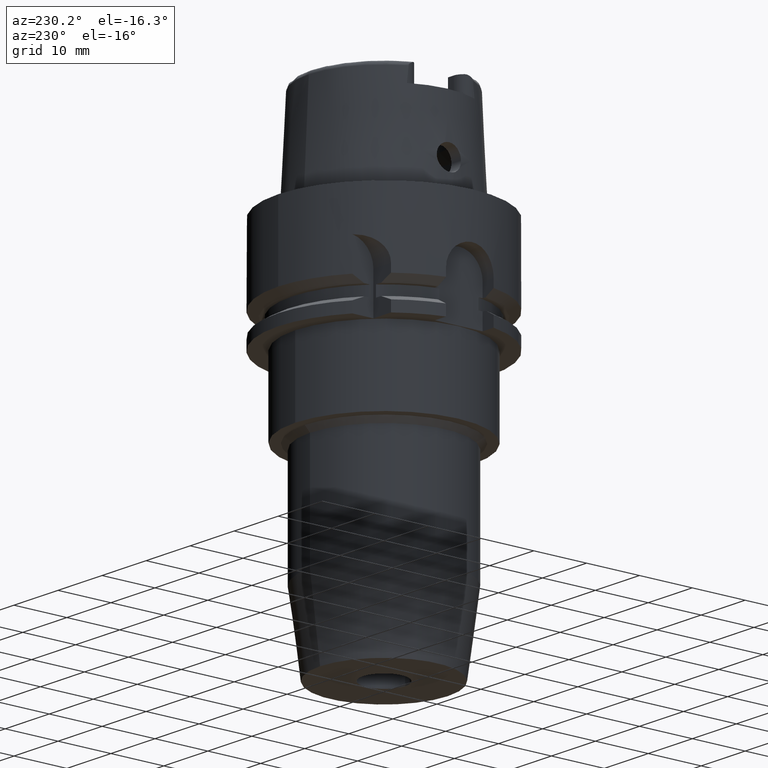
[diagram: clean part render]
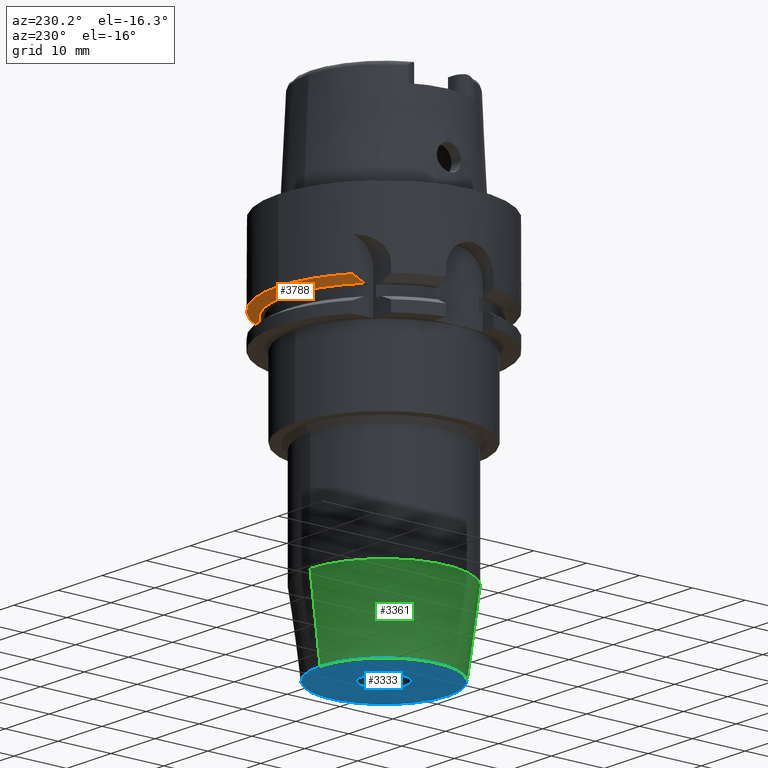
[diagram: same view with three faces highlighted in distinct colors, each labeled with its STEP entity id]
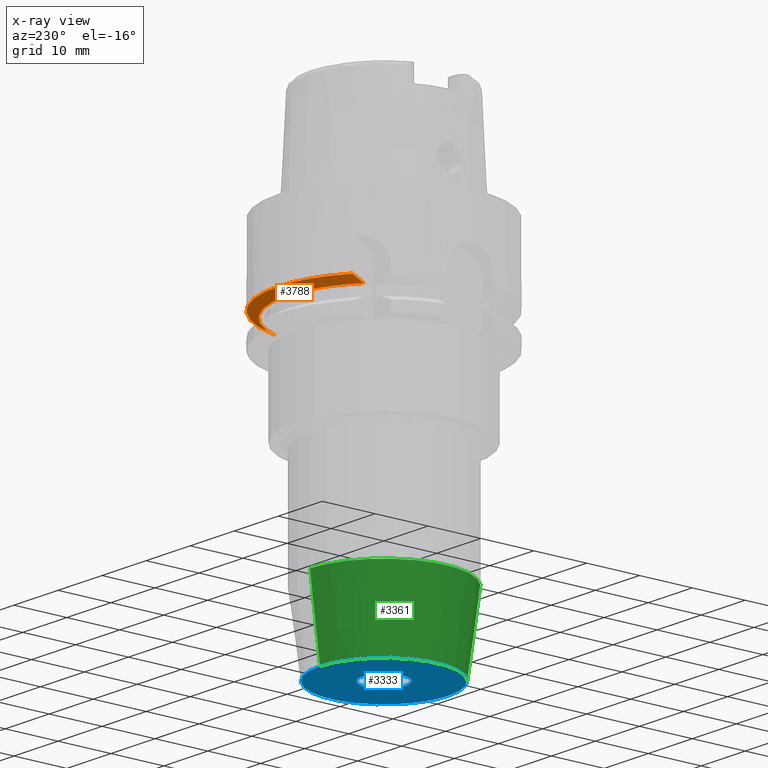
[diagram: x-ray of the same camera — body ghosted, the three highlighted faces saturated]
A machine part, auxiliary view with three faces highlighted in distinct colors.
The next image is the same camera in x-ray (body ghosted, the three faces saturated) — at least one of them is partly hidden behind the body in this view.
Their STEP definitions:

[orange] entity #3788 — the highlighted conical surface has half-angle 60 deg.
#1251=CARTESIAN_POINT('',(-1.200000248632E1,1.372614523126E1,-1.5E1));
#1252=CARTESIAN_POINT('',(-1.200000248632E1,1.398016229775E1,
-1.488958811174E1));
#1253=CARTESIAN_POINT('',(-1.199999995572E1,1.448708976335E1,
-1.466644126087E1));
#1254=CARTESIAN_POINT('',(-1.199999642550E1,1.524513718757E1,
-1.432632497118E1));
#1255=CARTESIAN_POINT('',(-1.200000837001E1,1.574855084212E1,
-1.409537861669E1));
#1256=CARTESIAN_POINT('',(-1.200000837001E1,1.599999372248E1,
-1.397924226166E1));
#1562=CARTESIAN_POINT('',(1.738268111872E1,5.500000149033E0,-1.5E1));
#1563=CARTESIAN_POINT('',(1.758258189194E1,5.500000149033E0,-1.488996391329E1));
#1564=CARTESIAN_POINT('',(1.798586218897E1,5.499999994797E0,-1.466763263439E1));
#1565=CARTESIAN_POINT('',(1.860125646191E1,5.499999794662E0,-1.432737672186E1));
#1566=CARTESIAN_POINT('',(1.901850497001E1,5.500000482591E0,-1.409604953819E1));
#1567=CARTESIAN_POINT('',(1.922888438499E1,5.500000482591E0,-1.397927001383E1));
#1572=CARTESIAN_POINT('',(0.E0,0.E0,-1.397927405784E1));
#1573=DIRECTION('',(0.E0,0.E0,1.E0));
#1574=DIRECTION('',(9.614442261515E-1,2.75E-1,0.E0));
#1575=AXIS2_PLACEMENT_3D('',#1572,#1573,#1574);
#1580=CARTESIAN_POINT('',(0.E0,0.E0,-1.397927405784E1));
#1581=DIRECTION('',(0.E0,0.E0,1.E0));
#1582=DIRECTION('',(0.E0,1.E0,0.E0));
#1583=AXIS2_PLACEMENT_3D('',#1580,#1581,#1582);
#1611=CARTESIAN_POINT('',(0.E0,0.E0,-1.5E1));
#1612=DIRECTION('',(0.E0,0.E0,1.E0));
#1613=DIRECTION('',(9.534134927694E-1,3.016665573198E-1,0.E0));
#1614=AXIS2_PLACEMENT_3D('',#1611,#1612,#1613);
#1619=CARTESIAN_POINT('',(0.E0,0.E0,-1.5E1));
#1620=DIRECTION('',(0.E0,0.E0,1.E0));
#1621=DIRECTION('',(0.E0,1.E0,0.E0));
#1622=AXIS2_PLACEMENT_3D('',#1619,#1620,#1621);
#2491=CARTESIAN_POINT('',(-1.200000248632E1,1.372614523126E1,-1.5E1));
#2492=VERTEX_POINT('',#2491);
#2493=VERTEX_POINT('',#1256);
#2588=CARTESIAN_POINT('',(1.738268111872E1,5.500000149033E0,-1.5E1));
#2589=VERTEX_POINT('',#2588);
#2590=CARTESIAN_POINT('',(0.E0,1.823205080757E1,-1.5E1));
#2591=VERTEX_POINT('',#2590);
#2598=VERTEX_POINT('',#1567);
#2599=CARTESIAN_POINT('',(0.E0,2.E1,-1.397927405784E1));
#2600=VERTEX_POINT('',#2599);
#3771=CARTESIAN_POINT('',(0.E0,0.E0,-1.448963702892E1));
#3772=DIRECTION('',(0.E0,0.E0,1.E0));
#3773=DIRECTION('',(0.E0,1.E0,0.E0));
#3774=AXIS2_PLACEMENT_3D('',#3771,#3772,#3773);
#3775=CONICAL_SURFACE('',#3774,1.911602540378E1,6.E1);
#3776=ORIENTED_EDGE('',*,*,#3516,.F.);
#3778=ORIENTED_EDGE('',*,*,#3777,.F.);
#3780=ORIENTED_EDGE('',*,*,#3779,.F.);
#3782=ORIENTED_EDGE('',*,*,#3781,.T.);
#3784=ORIENTED_EDGE('',*,*,#3783,.T.);
#3785=ORIENTED_EDGE('',*,*,#3748,.T.);
#3786=EDGE_LOOP('',(#3776,#3778,#3780,#3782,#3784,#3785));
#3787=FACE_OUTER_BOUND('',#3786,.F.);
#1257=B_SPLINE_CURVE_WITH_KNOTS('',3,(#1251,#1252,#1253,#1254,#1255,#1256),
.UNSPECIFIED.,.F.,.F.,(4,1,1,4),(0.E0,3.333333333333E-1,6.666666666667E-1,1.E0),
.UNSPECIFIED.);
#1568=B_SPLINE_CURVE_WITH_KNOTS('',3,(#1562,#1563,#1564,#1565,#1566,#1567),
.UNSPECIFIED.,.F.,.F.,(4,1,1,4),(0.E0,3.333333333333E-1,6.666666666667E-1,1.E0),
.UNSPECIFIED.);
#1576=CIRCLE('',#1575,2.E1);
#1584=CIRCLE('',#1583,2.E1);
#1615=CIRCLE('',#1614,1.823205080757E1);
#1623=CIRCLE('',#1622,1.823205080757E1);
#3516=EDGE_CURVE('',#2492,#2493,#1257,.T.);
#3748=EDGE_CURVE('',#2600,#2493,#1584,.T.);
#3777=EDGE_CURVE('',#2591,#2492,#1623,.T.);
#3779=EDGE_CURVE('',#2589,#2591,#1615,.T.);
#3781=EDGE_CURVE('',#2589,#2598,#1568,.T.);
#3783=EDGE_CURVE('',#2598,#2600,#1576,.T.);
#3788=ADVANCED_FACE('',(#3787),#3775,.T.);

[blue] entity #3333 — the highlighted planar face has unit normal (0, 0, 1).
#1001=CARTESIAN_POINT('',(0.E0,0.E0,-7.E1));
#1002=DIRECTION('',(0.E0,0.E0,1.E0));
#1003=DIRECTION('',(0.E0,-1.E0,0.E0));
#1004=AXIS2_PLACEMENT_3D('',#1001,#1002,#1003);
#1009=CARTESIAN_POINT('',(0.E0,0.E0,-7.E1));
#1010=DIRECTION('',(0.E0,0.E0,1.E0));
#1011=DIRECTION('',(0.E0,1.E0,0.E0));
#1012=AXIS2_PLACEMENT_3D('',#1009,#1010,#1011);
#1017=CARTESIAN_POINT('',(0.E0,0.E0,-7.E1));
#1018=DIRECTION('',(0.E0,0.E0,-1.E0));
#1019=DIRECTION('',(0.E0,-1.E0,0.E0));
#1020=AXIS2_PLACEMENT_3D('',#1017,#1018,#1019);
#1025=CARTESIAN_POINT('',(0.E0,0.E0,-7.E1));
#1026=DIRECTION('',(0.E0,0.E0,-1.E0));
#1027=DIRECTION('',(0.E0,1.E0,0.E0));
#1028=AXIS2_PLACEMENT_3D('',#1025,#1026,#1027);
#2430=CARTESIAN_POINT('',(0.E0,4.E0,-7.E1));
#2431=VERTEX_POINT('',#2430);
#2432=CARTESIAN_POINT('',(0.E0,-4.E0,-7.E1));
#2433=VERTEX_POINT('',#2432);
#2434=CARTESIAN_POINT('',(0.E0,-1.2096E1,-7.E1));
#2435=CARTESIAN_POINT('',(0.E0,1.2096E1,-7.E1));
#2436=VERTEX_POINT('',#2434);
#2437=VERTEX_POINT('',#2435);
#3318=CARTESIAN_POINT('',(0.E0,0.E0,-7.E1));
#3319=DIRECTION('',(0.E0,0.E0,1.E0));
#3320=DIRECTION('',(0.E0,1.E0,0.E0));
#3321=AXIS2_PLACEMENT_3D('',#3318,#3319,#3320);
#3322=PLANE('',#3321);
#3324=ORIENTED_EDGE('',*,*,#3323,.T.);
#3326=ORIENTED_EDGE('',*,*,#3325,.T.);
#3327=EDGE_LOOP('',(#3324,#3326));
#3328=FACE_OUTER_BOUND('',#3327,.F.);
#3329=ORIENTED_EDGE('',*,*,#3311,.T.);
#3330=ORIENTED_EDGE('',*,*,#3300,.T.);
#3331=EDGE_LOOP('',(#3329,#3330));
#3332=FACE_BOUND('',#3331,.F.);
#1005=CIRCLE('',#1004,1.2096E1);
#1013=CIRCLE('',#1012,1.2096E1);
#1021=CIRCLE('',#1020,4.E0);
#1029=CIRCLE('',#1028,4.E0);
#3300=EDGE_CURVE('',#2431,#2433,#1029,.T.);
#3311=EDGE_CURVE('',#2433,#2431,#1021,.T.);
#3323=EDGE_CURVE('',#2436,#2437,#1005,.T.);
#3325=EDGE_CURVE('',#2437,#2436,#1013,.T.);
#3333=ADVANCED_FACE('',(#3328,#3332),#3322,.F.);

[green] entity #3361 — the highlighted conical surface has half-angle 7.5 deg.
#1009=CARTESIAN_POINT('',(0.E0,0.E0,-7.E1));
#1010=DIRECTION('',(0.E0,0.E0,1.E0));
#1011=DIRECTION('',(0.E0,1.E0,0.E0));
#1012=AXIS2_PLACEMENT_3D('',#1009,#1010,#1011);
#1033=DIRECTION('',(0.E0,-1.305261922200E-1,-9.914448613738E-1));
#1034=VECTOR('',#1033,1.458711058383E1);
#1035=CARTESIAN_POINT('',(0.E0,1.4E1,-5.553768416937E1));
#1036=LINE('',#1035,#1034);
#1048=CARTESIAN_POINT('',(0.E0,0.E0,-5.553768416937E1));
#1049=DIRECTION('',(0.E0,0.E0,1.E0));
#1050=DIRECTION('',(0.E0,1.E0,0.E0));
#1051=AXIS2_PLACEMENT_3D('',#1048,#1049,#1050);
#1056=DIRECTION('',(0.E0,1.305261922200E-1,-9.914448613738E-1));
#1057=VECTOR('',#1056,1.458711058383E1);
#1058=CARTESIAN_POINT('',(0.E0,-1.4E1,-5.553768416937E1));
#1059=LINE('',#1058,#1057);
#2434=CARTESIAN_POINT('',(0.E0,-1.2096E1,-7.E1));
#2435=CARTESIAN_POINT('',(0.E0,1.2096E1,-7.E1));
#2436=VERTEX_POINT('',#2434);
#2437=VERTEX_POINT('',#2435);
#2438=CARTESIAN_POINT('',(0.E0,1.4E1,-5.553768416937E1));
#2439=VERTEX_POINT('',#2438);
#2440=CARTESIAN_POINT('',(0.E0,-1.4E1,-5.553768416937E1));
#2441=VERTEX_POINT('',#2440);
#3349=CARTESIAN_POINT('',(0.E0,0.E0,-6.276884208469E1));
#3350=DIRECTION('',(0.E0,0.E0,1.E0));
#3351=DIRECTION('',(0.E0,1.E0,0.E0));
#3352=AXIS2_PLACEMENT_3D('',#3349,#3350,#3351);
#3353=CONICAL_SURFACE('',#3352,1.3048E1,7.5E0);
#3354=ORIENTED_EDGE('',*,*,#3339,.F.);
#3356=ORIENTED_EDGE('',*,*,#3355,.T.);
#3357=ORIENTED_EDGE('',*,*,#3342,.T.);
#3358=ORIENTED_EDGE('',*,*,#3325,.F.);
#3359=EDGE_LOOP('',(#3354,#3356,#3357,#3358));
#3360=FACE_OUTER_BOUND('',#3359,.F.);
#1013=CIRCLE('',#1012,1.2096E1);
#1052=CIRCLE('',#1051,1.4E1);
#3325=EDGE_CURVE('',#2437,#2436,#1013,.T.);
#3339=EDGE_CURVE('',#2439,#2437,#1036,.T.);
#3342=EDGE_CURVE('',#2441,#2436,#1059,.T.);
#3355=EDGE_CURVE('',#2439,#2441,#1052,.T.);
#3361=ADVANCED_FACE('',(#3360),#3353,.T.);